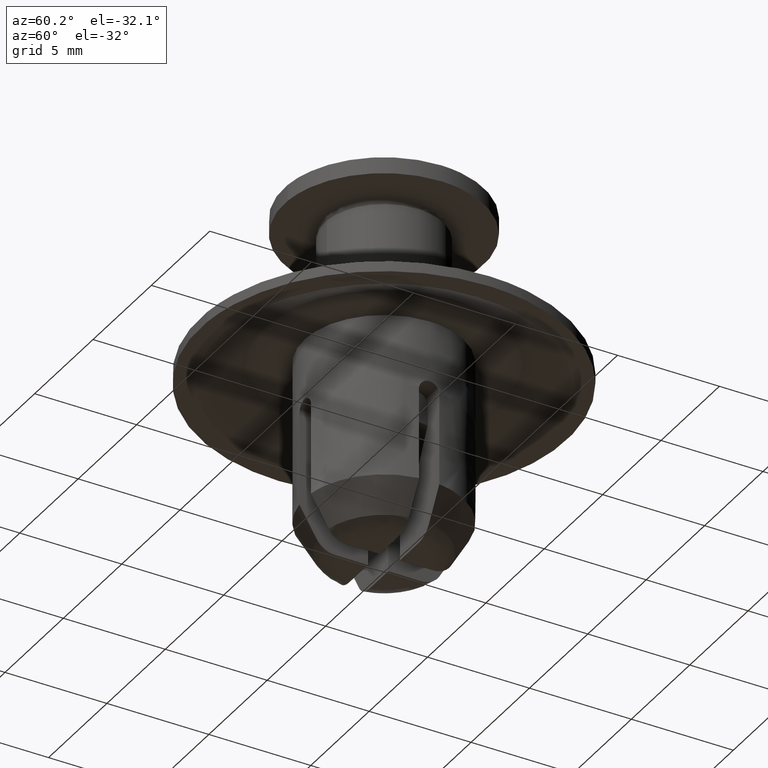
[diagram: clean part render]
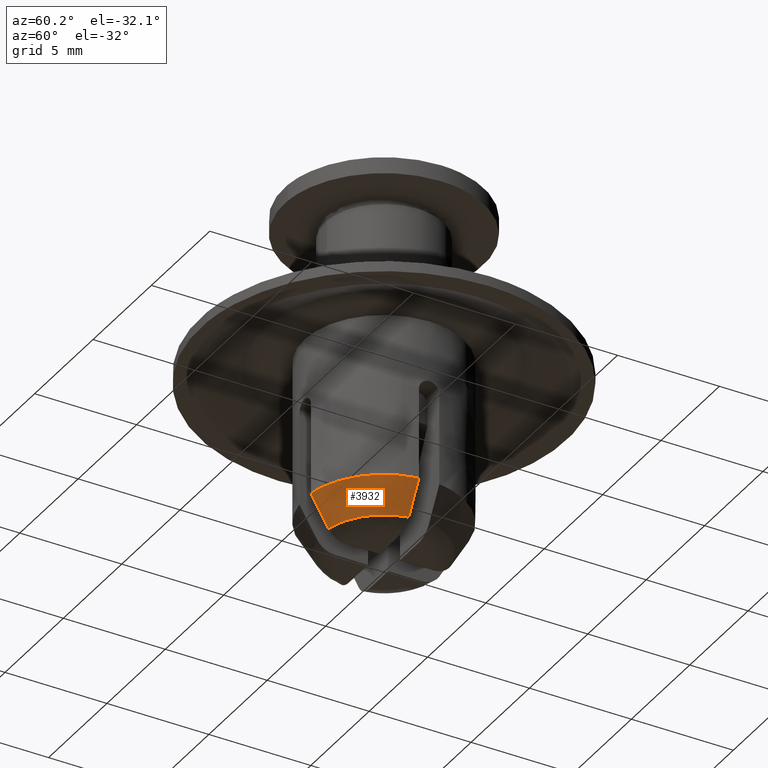
[diagram: same view with one face highlighted and labeled with its STEP entity id]
A machine part, auxiliary view. The second image highlights one B-rep face of the part: STEP entity #3932.
In plain terms, the highlighted face is a freeform B-spline surface patch.
Its self-contained STEP definition (entity closure, byte-faithful):
#2892=CARTESIAN_POINT('',(0.500000000000000,-3.867815536518810,-16.008142471313551));
#2893=VERTEX_POINT('',#2892);
#2899=CARTESIAN_POINT('',(3.867815536518810,-0.500000000000000,-16.008142471313501));
#2900=VERTEX_POINT('',#2899);
#2901=CARTESIAN_POINT('',(3.867815536518816,-0.500000000000000,-16.008142471313501));
#2902=CARTESIAN_POINT('',(3.482289235286439,-3.482289235286439,-16.008142471313498));
#2903=CARTESIAN_POINT('',(0.500000000000001,-3.867815536518815,-16.008142471313501));
#2911=(BOUNDED_CURVE()B_SPLINE_CURVE(2,(#2901,#2902,#2903),.UNSPECIFIED.,.F.,.U.)CURVE()GEOMETRIC_REPRESENTATION_ITEM()QUASI_UNIFORM_CURVE()RATIONAL_B_SPLINE_CURVE((1.0,0.791926227420587,1.0))REPRESENTATION_ITEM(''));
#2912=EDGE_CURVE('',#2900,#2893,#2911,.T.);
#3884=CARTESIAN_POINT('',(3.005795234650388,-0.261430813918091,-17.537297007478578));
#3885=CARTESIAN_POINT('',(3.907319926393178,-0.339841455871546,-15.969913607909371));
#3886=CARTESIAN_POINT('',(2.782512225897952,-2.828622468291114,-17.537297007478582));
#3887=CARTESIAN_POINT('',(3.617067902813505,-3.677007936930490,-15.969913607909378));
#3888=CARTESIAN_POINT('',(0.211997802773815,-3.009685697000923,-17.537297007478578));
#3889=CARTESIAN_POINT('',(0.275582058811150,-3.912377250621351,-15.969913607909371));
#3897=(BOUNDED_SURFACE()B_SPLINE_SURFACE(1,2,((#3884,#3886,#3888),(#3885,#3887,#3889)),.UNSPECIFIED.,.F.,.F.,.U.)B_SPLINE_SURFACE_WITH_KNOTS((2,2),(3,3),(0.0,1.0),(0.0,5.787713585203164),.UNSPECIFIED.)GEOMETRIC_REPRESENTATION_ITEM()RATIONAL_B_SPLINE_SURFACE(((1.0,0.760405965600031,1.0),(1.0,0.760405965600031,1.0)))REPRESENTATION_ITEM('')SURFACE());
#3898=CARTESIAN_POINT('',(2.997256992117011,-0.500000000000000,-17.500000478452801));
#3899=VERTEX_POINT('',#3898);
#3900=CARTESIAN_POINT('',(0.500000000000000,-2.997256992116885,-17.500000478452950));
#3901=VERTEX_POINT('',#3900);
#3902=CARTESIAN_POINT('',(2.997256992117011,-0.500000000000000,-17.500000478452801));
#3903=CARTESIAN_POINT('',(2.640226433323424,-2.640226433323405,-17.500000649899302));
#3904=CARTESIAN_POINT('',(0.500000000000000,-2.997256992116885,-17.500000478452950));
#3912=(BOUNDED_CURVE()B_SPLINE_CURVE(2,(#3902,#3903,#3904),.UNSPECIFIED.,.F.,.U.)CURVE()GEOMETRIC_REPRESENTATION_ITEM()QUASI_UNIFORM_CURVE()RATIONAL_B_SPLINE_CURVE((1.0,0.813819719573561,1.0))REPRESENTATION_ITEM(''));
#3913=EDGE_CURVE('',#3899,#3901,#3912,.T.);
#3914=ORIENTED_EDGE('',*,*,#3913,.F.);
#3915=CARTESIAN_POINT('',(2.997256992117011,-0.500000000000000,-17.500000478452801));
#3916=CARTESIAN_POINT('',(3.288106275958512,-0.500000000000000,-17.003101403978949));
#3917=CARTESIAN_POINT('',(3.578144203909034,-0.500000000000000,-16.505728112842149));
#3918=CARTESIAN_POINT('',(3.867815536518815,-0.500000000000000,-16.008142471313501));
#3919=QUASI_UNIFORM_CURVE('',3,(#3915,#3916,#3917,#3918),.UNSPECIFIED.,.F.,.U.);
#3920=EDGE_CURVE('',#3899,#2900,#3919,.T.);
#3921=ORIENTED_EDGE('',*,*,#3920,.T.);
#3922=ORIENTED_EDGE('',*,*,#2912,.T.);
#3923=CARTESIAN_POINT('',(0.500000000000000,-3.867815536518792,-16.008142471313541));
#3924=CARTESIAN_POINT('',(0.500000000000000,-3.578143819014454,-16.505728773998420));
#3925=CARTESIAN_POINT('',(0.500000000000000,-3.288103931369518,-17.003105409582211));
#3926=CARTESIAN_POINT('',(0.500000000000000,-2.997256992116885,-17.500000478452950));
#3927=QUASI_UNIFORM_CURVE('',3,(#3923,#3924,#3925,#3926),.UNSPECIFIED.,.F.,.U.);
#3928=EDGE_CURVE('',#2893,#3901,#3927,.T.);
#3929=ORIENTED_EDGE('',*,*,#3928,.T.);
#3930=EDGE_LOOP('',(#3914,#3921,#3922,#3929));
#3931=FACE_OUTER_BOUND('',#3930,.T.);
#3932=ADVANCED_FACE('',(#3931),#3897,.T.);